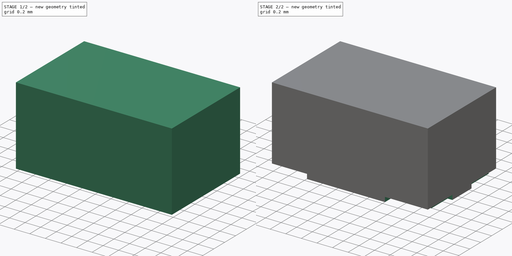
[diagram: build sequence overview — one tinted view per stage of 2, left to right]
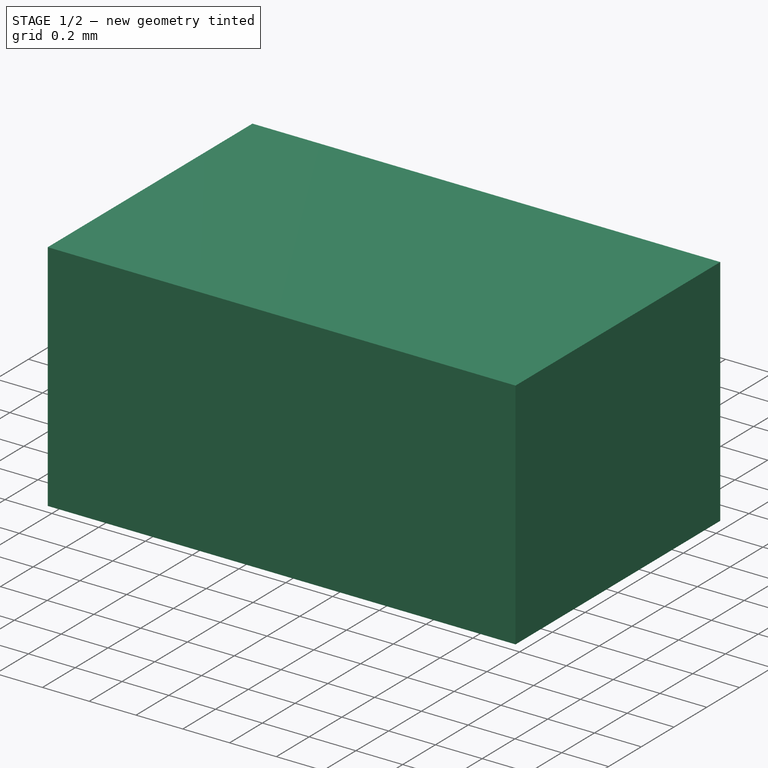
[diagram: stage 1 of 2 — iso view after this stage's code; geometry added in this stage tinted green]
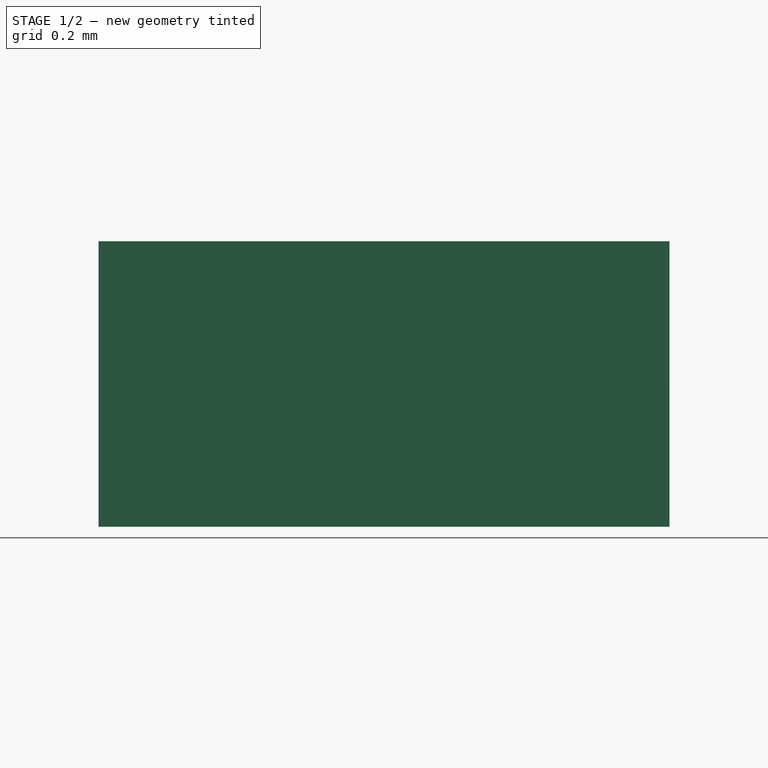
[diagram: stage 1 of 2 — front view after this stage's code; geometry added in this stage tinted green]
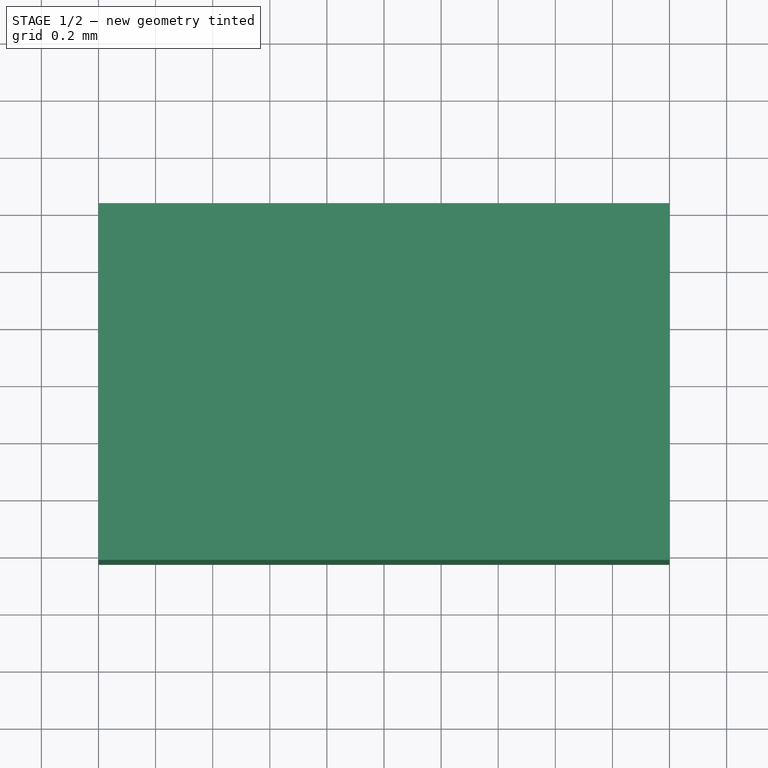
[diagram: stage 1 of 2 — top view after this stage's code; geometry added in this stage tinted green]
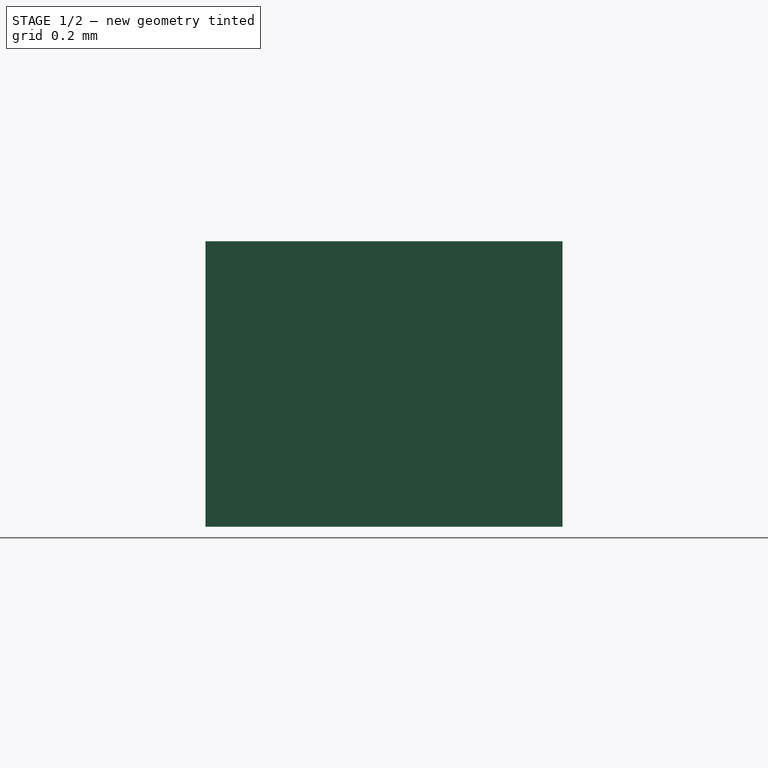
[diagram: stage 1 of 2 — right view after this stage's code; geometry added in this stage tinted green]
FCSTD DOCUMENT  (FreeCAD 0.21R33668 +26 (Git))
Label: VEML3328
License: All rights reserved
LicenseURL: http://en.wikipedia.org/wiki/All_rights_reserved
objects: Sketcher::SketchObject×3, PartDesign::Pad×3, PartDesign::Pocket×1, PartDesign::Body×1
note: 12 computed .brp shape members not serialized (recipe doc carries the construction recipe); baked Part::Feature solids carry a one-line shape summary decoded from their .brp

FEATURE [Sketcher::SketchObject] Sketch
  FullyConstrained = true
  MapMode = 5
  Support = -> [XY_Plane]
  sketch-geometry (4):
    g0: LineSegment StartX=-1 StartY=0.625 StartZ=0 EndX=1 EndY=0.625 EndZ=0
    g1: LineSegment StartX=1 StartY=0.625 StartZ=0 EndX=1 EndY=-0.625 EndZ=0
    g2: LineSegment StartX=1 StartY=-0.625 StartZ=0 EndX=-1 EndY=-0.625 EndZ=0
    g3: LineSegment StartX=-1 StartY=-0.625 StartZ=0 EndX=-1 EndY=0.625 EndZ=0
  constraints (11):
    c: Coincident(g0,g1)
    c: Coincident(g1,g2)
    c: Coincident(g2,g3)
    c: Coincident(g3,g0)
    c: Horizontal(g0)
    c: Horizontal(g2)
    c: Vertical(g1)
    c: Vertical(g3)
    c: DistanceY(g1,g1) = 1.25
    c: DistanceX(g0,g0) = 2
    c: Symmetric(g0,g1,g-1)
FEATURE [PartDesign::Pad] Pad
  Direction = (0,0,1)
  Length = 0.56
  Length2 = 10
  Profile = -> Sketch
  ReferenceAxis = -> Sketch [N_Axis]
  Type = 0
FEATURE [PartDesign::Pad] Pad001
  BaseFeature = -> Pad
  Direction = (0,0,1)
  Length = 0.44
  Length2 = 10
  Profile = -> Pad [Face6]
  Type = 0
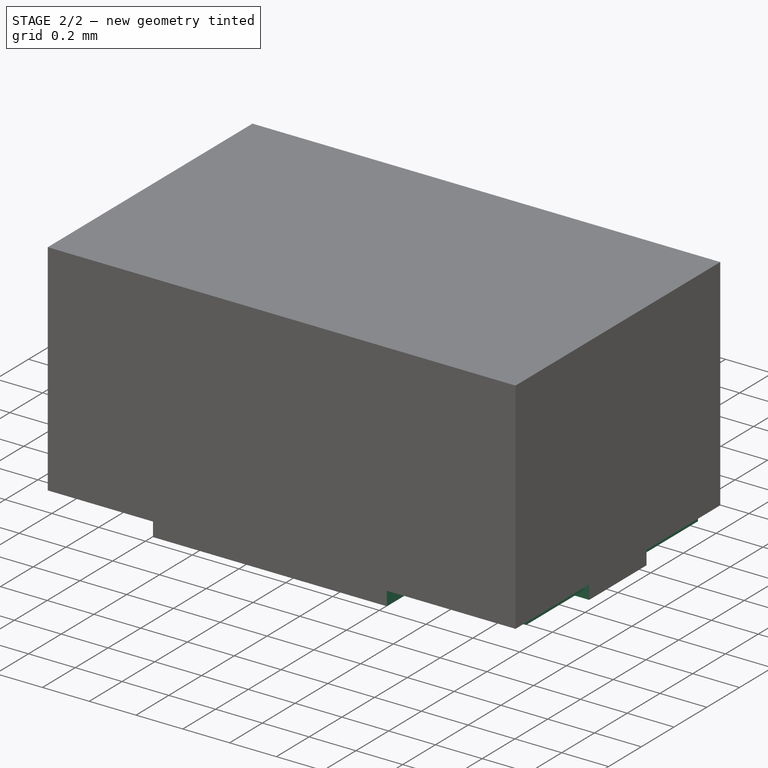
[diagram: stage 2 of 2 — iso view after this stage's code; geometry added in this stage tinted green]
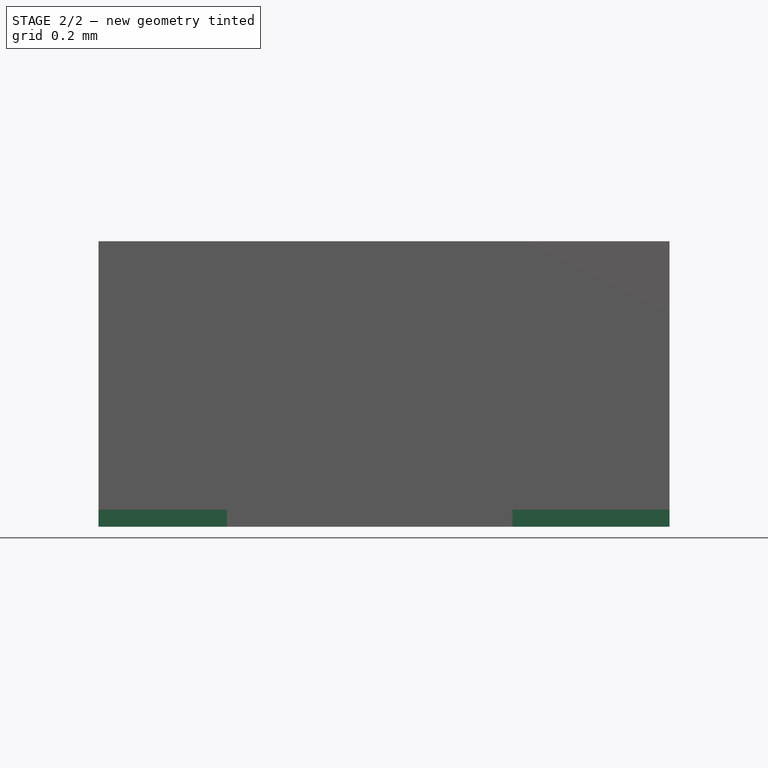
[diagram: stage 2 of 2 — front view after this stage's code; geometry added in this stage tinted green]
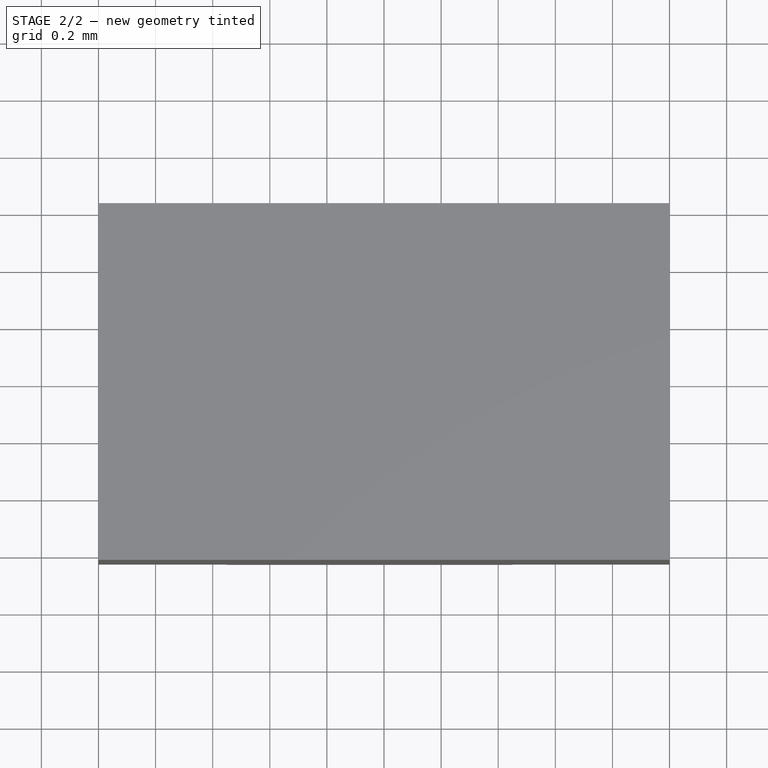
[diagram: stage 2 of 2 — top view after this stage's code; geometry added in this stage tinted green]
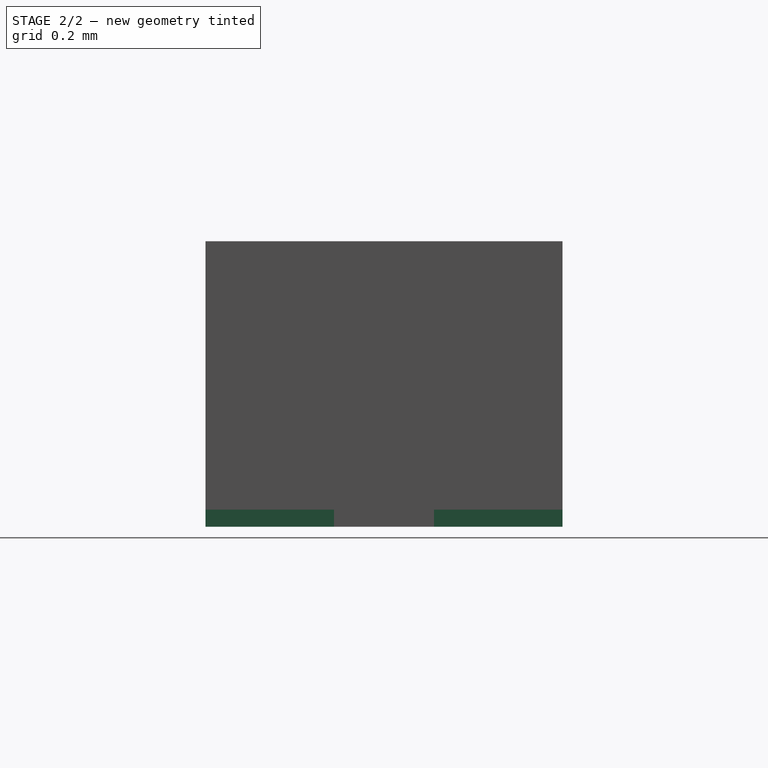
[diagram: stage 2 of 2 — right view after this stage's code; geometry added in this stage tinted green]
FEATURE [Sketcher::SketchObject] Sketch002
  FullyConstrained = true
  MapMode = 5
  Support = -> [XY_Plane]
  sketch-geometry (20):
    g0: LineSegment StartX=-1 StartY=0.625 StartZ=0 EndX=-0.55 EndY=0.625 EndZ=0
    g1: LineSegment StartX=-0.55 StartY=0.625 StartZ=0 EndX=-0.55 EndY=0.175 EndZ=0
    g2: LineSegment StartX=-0.55 StartY=0.175 StartZ=0 EndX=-1 EndY=0.175 EndZ=0
    g3: LineSegment StartX=-1 StartY=0.175 StartZ=0 EndX=-1 EndY=0.625 EndZ=0
    g4: LineSegment StartX=1 StartY=0.625 StartZ=0 EndX=0.55 EndY=0.625 EndZ=0
    g5: LineSegment StartX=0.55 StartY=0.625 StartZ=0 EndX=0.55 EndY=0.175 EndZ=0
    g6: LineSegment StartX=0.55 StartY=0.175 StartZ=0 EndX=1 EndY=0.175 EndZ=0
    g7: LineSegment StartX=1 StartY=0.175 StartZ=0 EndX=1 EndY=0.625 EndZ=0
    g8: LineSegment StartX=1 StartY=-0.625 StartZ=0 EndX=0.45 EndY=-0.625 EndZ=0
    g9: LineSegment StartX=0.45 StartY=-0.625 StartZ=0 EndX=0.45 EndY=-0.175 EndZ=0
    g10: LineSegment StartX=0.45 StartY=-0.175 StartZ=0 EndX=1 EndY=-0.175 EndZ=0
    g11: LineSegment StartX=1 StartY=-0.175 StartZ=0 EndX=1 EndY=-0.625 EndZ=0
    g12: LineSegment StartX=-1 StartY=-0.175 StartZ=0 EndX=-0.55 EndY=-0.175 EndZ=0
    g13: LineSegment StartX=-0.55 StartY=-0.175 StartZ=0 EndX=-0.55 EndY=-0.625 EndZ=0
    g14: LineSegment StartX=-0.55 StartY=-0.625 StartZ=0 EndX=-1 EndY=-0.625 EndZ=0
    g15: LineSegment StartX=-1 StartY=-0.625 StartZ=0 EndX=-1 EndY=-0.175 EndZ=0
    g16: LineSegment StartX=-1 StartY=0.625 StartZ=0 EndX=1 EndY=0.625 EndZ=0
    g17: LineSegment StartX=1 StartY=0.625 StartZ=0 EndX=1 EndY=-0.625 EndZ=0
    g18: LineSegment StartX=1 StartY=-0.625 StartZ=0 EndX=-1 EndY=-0.625 EndZ=0
    g19: LineSegment StartX=-1 StartY=-0.625 StartZ=0 EndX=-1 EndY=0.625 EndZ=0
  constraints (55):
    c: Coincident(g0,g1)
    c: Coincident(g1,g2)
    c: Coincident(g2,g3)
    c: Coincident(g3,g0)
    c: Horizontal(g0)
    c: Horizontal(g2)
    c: Vertical(g1)
    c: Vertical(g3)
    c: Coincident(g4,g5)
    c: Coincident(g5,g6)
    c: Coincident(g6,g7)
    c: Coincident(g7,g4)
    c: Horizontal(g4)
    c: Horizontal(g6)
    c: Vertical(g5)
    c: Vertical(g7)
    c: Coincident(g8,g9)
    c: Coincident(g9,g10)
    c: Coincident(g10,g11)
    c: Coincident(g11,g8)
    c: Horizontal(g8)
    c: Horizontal(g10)
    c: Vertical(g9)
    c: Vertical(g11)
    c: Coincident(g12,g13)
    c: Coincident(g13,g14)
    c: Coincident(g14,g15)
    c: Coincident(g15,g12)
    c: Horizontal(g12)
    c: Horizontal(g14)
    c: Vertical(g13)
    c: Vertical(g15)
    c: DistanceX(g0,g0) = 0.45
    c: DistanceY(g3,g3) = 0.45
    c: Equal(g3,g15)
    c: Equal(g7,g3)
    c: Equal(g11,g3)
    c: Coincident(g16,g17)
    c: Coincident(g17,g18)
    c: Coincident(g18,g19)
    c: Coincident(g19,g16)
    c: Horizontal(g16)
    c: Horizontal(g18)
    c: Vertical(g17)
    c: Vertical(g19)
    c: Symmetric(g16,g17,g-1)
    c: DistanceX(g16,g16) = 2
    c: DistanceY(g17,g17) = 1.25
    c: Coincident(g4,g17)
    c: Coincident(g8,g17)
    c: Coincident(g14,g18)
    c: Coincident(g0,g19)
    c: Equal(g14,g0)
    c: Equal(g4,g0)
    c: DistanceX(g10,g10) = 0.55
FEATURE [PartDesign::Pocket] Pocket
  BaseFeature = -> Pad001
  Direction = (0,0,-1)
  Length = 0.06
  Length2 = 5
  Profile = -> Sketch002
  ReferenceAxis = -> Sketch002 [N_Axis]
  Reversed = true
  Type = 0
FEATURE [Sketcher::SketchObject] Sketch003
  FullyConstrained = true
  MapMode = 5
  Support = -> [XY_Plane]
  sketch-geometry (20):
    g0: LineSegment StartX=-1 StartY=0.625 StartZ=0 EndX=1 EndY=0.625 EndZ=0
    g1: LineSegment StartX=1 StartY=0.625 StartZ=0 EndX=1 EndY=-0.625 EndZ=0
    g2: LineSegment StartX=1 StartY=-0.625 StartZ=0 EndX=-1 EndY=-0.625 EndZ=0
    g3: LineSegment StartX=-1 StartY=-0.625 StartZ=0 EndX=-1 EndY=0.625 EndZ=0
    g4: LineSegment StartX=-0.975 StartY=0.525 StartZ=0 EndX=-0.55 EndY=0.525 EndZ=0
    g5: LineSegment StartX=-0.55 StartY=0.525 StartZ=0 EndX=-0.55 EndY=0.175 EndZ=0
    g6: LineSegment StartX=-0.55 StartY=0.175 StartZ=0 EndX=-0.975 EndY=0.175 EndZ=0
    g7: LineSegment StartX=-0.975 StartY=0.175 StartZ=0 EndX=-0.975 EndY=0.525 EndZ=0
    g8: LineSegment StartX=-0.975 StartY=-0.525 StartZ=0 EndX=-0.55 EndY=-0.525 EndZ=0
    g9: LineSegment StartX=-0.55 StartY=-0.525 StartZ=0 EndX=-0.55 EndY=-0.175 EndZ=0
    g10: LineSegment StartX=-0.55 StartY=-0.175 StartZ=0 EndX=-0.975 EndY=-0.175 EndZ=0
    g11: LineSegment StartX=-0.975 StartY=-0.175 StartZ=0 EndX=-0.975 EndY=-0.525 EndZ=0
    g12: LineSegment StartX=0.975 StartY=-0.525 StartZ=0 EndX=0.45 EndY=-0.525 EndZ=0
    g13: LineSegment StartX=0.45 StartY=-0.525 StartZ=0 EndX=0.45 EndY=-0.175 EndZ=0
    g14: LineSegment StartX=0.45 StartY=-0.175 StartZ=0 EndX=0.975 EndY=-0.175 EndZ=0
    g15: LineSegment StartX=0.975 StartY=-0.175 StartZ=0 EndX=0.975 EndY=-0.525 EndZ=0
    g16: LineSegment StartX=0.55 StartY=0.175 StartZ=0 EndX=0.975 EndY=0.175 EndZ=0
    g17: LineSegment StartX=0.975 StartY=0.175 StartZ=0 EndX=0.975 EndY=0.525 EndZ=0
    g18: LineSegment StartX=0.975 StartY=0.525 StartZ=0 EndX=0.55 EndY=0.525 EndZ=0
    g19: LineSegment StartX=0.55 StartY=0.525 StartZ=0 EndX=0.55 EndY=0.175 EndZ=0
  constraints (59):
    c: Coincident(g0,g1)
    c: Coincident(g1,g2)
    c: Coincident(g2,g3)
    c: Coincident(g3,g0)
    c: Horizontal(g0)
    c: Horizontal(g2)
    c: Vertical(g1)
    c: Vertical(g3)
    c: DistanceY(g1,g1) = 1.25
    c: DistanceX(g0,g0) = 2
    c: Symmetric(g0,g1,g-1)
    c: Coincident(g4,g5)
    c: Coincident(g5,g6)
    c: Coincident(g6,g7)
    c: Coincident(g7,g4)
    c: Horizontal(g4)
    c: Horizontal(g6)
    c: Vertical(g5)
    c: Vertical(g7)
    c: Coincident(g8,g9)
    c: Coincident(g9,g10)
    c: Coincident(g10,g11)
    c: Coincident(g11,g8)
    c: Horizontal(g8)
    c: Horizontal(g10)
    c: Vertical(g9)
    c: Vertical(g11)
    c: Coincident(g12,g13)
    c: Coincident(g13,g14)
    c: Coincident(g14,g15)
    c: Coincident(g15,g12)
    c: Horizontal(g12)
    c: Horizontal(g14)
    c: Vertical(g13)
    c: Vertical(g15)
    c: Coincident(g16,g17)
    c: Coincident(g17,g18)
    c: Coincident(g18,g19)
    c: Coincident(g19,g16)
    c: Horizontal(g16)
    c: Horizontal(g18)
    c: Vertical(g17)
    c: Vertical(g19)
    c: DistanceX(g4,g4) = 0.425
    c: Equal(g4,g18)
    c: Equal(g4,g10)
    c: DistanceX(g14,g14) = 0.525
    c: DistanceY(g7,g7) = 0.35
    c: Equal(g7,g11)
    c: Equal(g7,g17)
    c: Equal(g7,g15)
    c: DistanceY(g4,g0) = 0.1
    c: DistanceY(g17,g0) = 0.1
    c: DistanceY(g1,g12) = 0.1
    c: DistanceY(g2,g8) = 0.1
    c: DistanceX(g0,g4) = 0.025
    c: DistanceX(g2,g8) = 0.025
    c: DistanceX(g17,g0) = 0.025
    c: DistanceX(g12,g1) = 0.025
FEATURE [PartDesign::Pad] Pad002
  BaseFeature = -> Pocket
  Direction = (0,0,1)
  Length = 0.06
  Length2 = -0.03
  Profile = -> Sketch003
  ReferenceAxis = -> Sketch003 [N_Axis]
  Type = 4
FEATURE [PartDesign::Body] Body  label="VEML3328"
  Group = -> [Sketch,Pad,Pad001,Sketch002,Pocket,Sketch003,Pad002]
  Origin = -> Origin
  Tip = -> Pad002
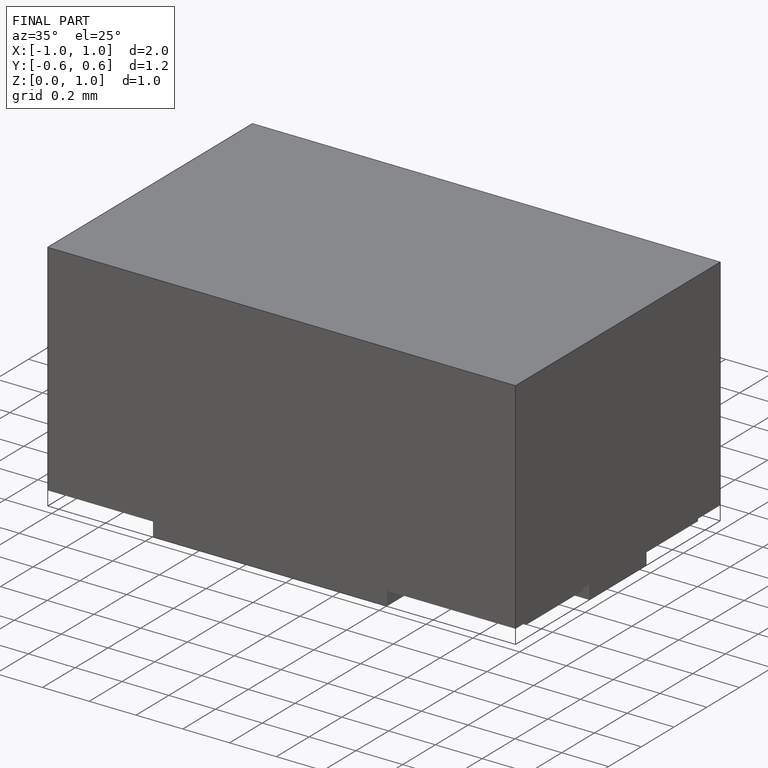
[diagram: finished part — iso view with bounding-box wireframe]
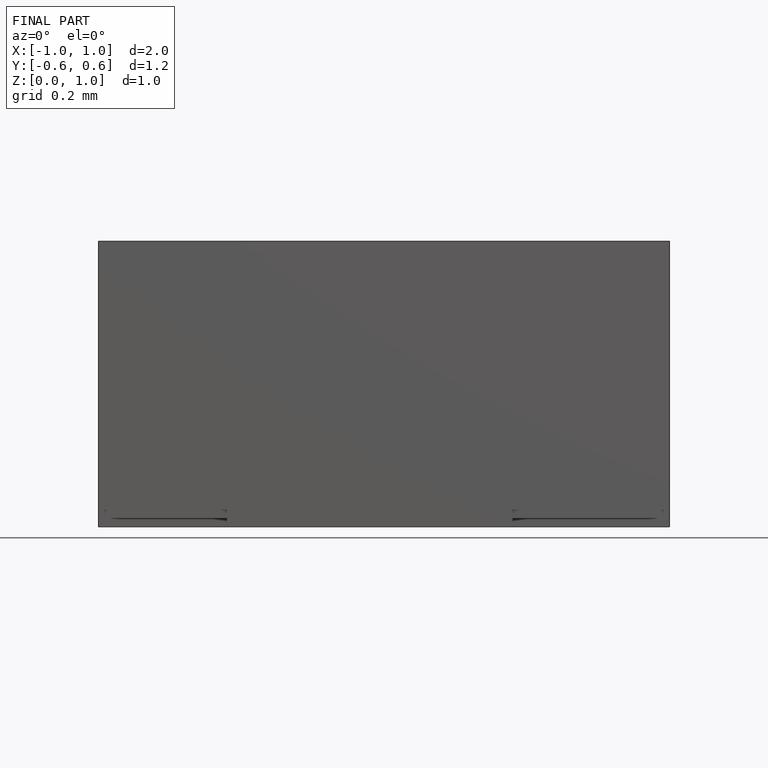
[diagram: finished part — front view with bounding-box wireframe]
